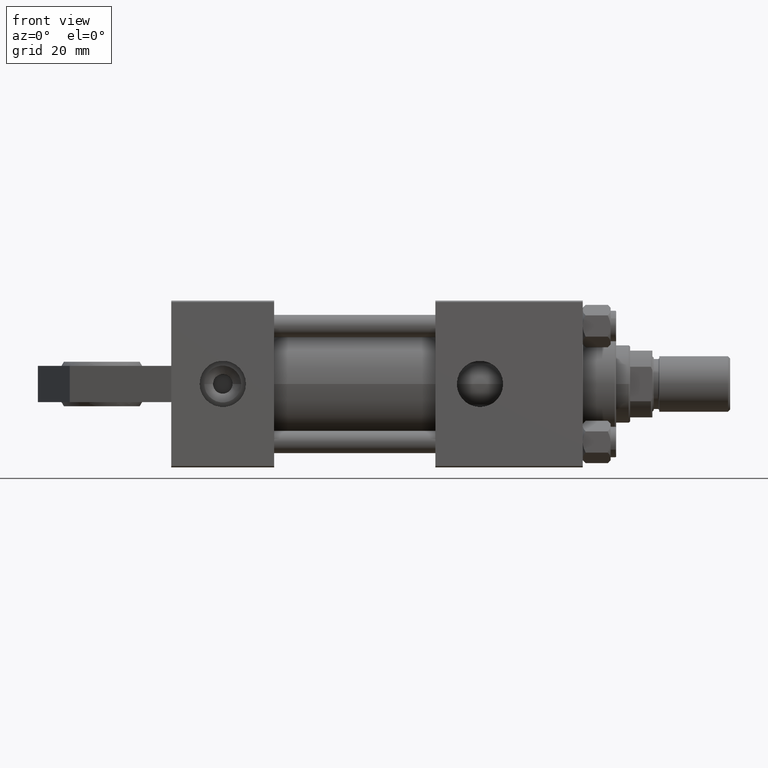
[diagram: clean part render]
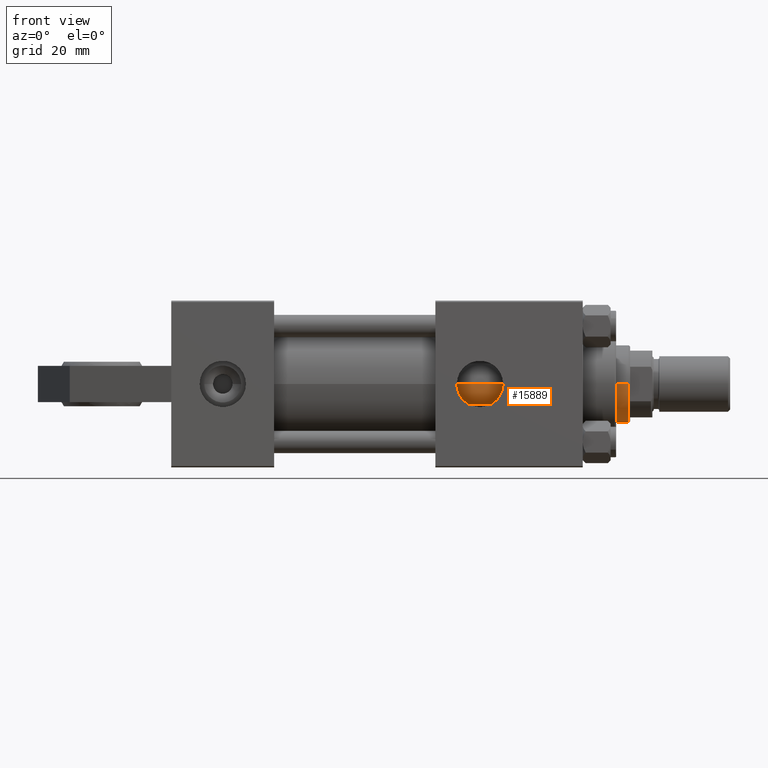
[diagram: same view with one face highlighted and labeled with its STEP entity id]
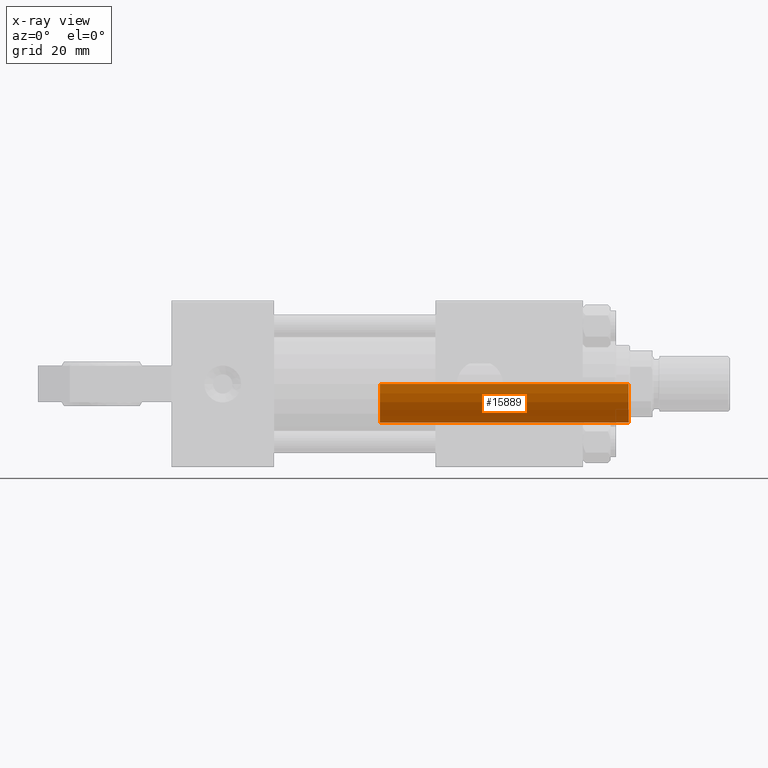
[diagram: x-ray of the same camera — body ghosted, the highlighted face saturated]
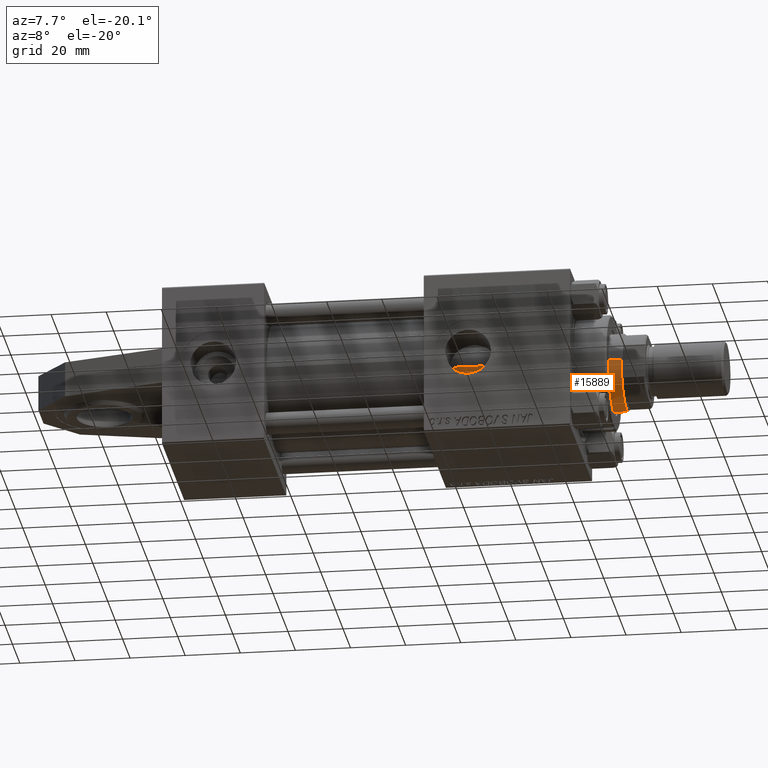
[diagram: same view with one face highlighted and labeled with its STEP entity id]
A machine part, front view. The second image highlights one B-rep face of the part: STEP entity #15889.
The next image is the same camera in x-ray: the body ghosted, the highlighted face saturated — about 0% of this face is hidden behind the body in this view.
A second angle (auxiliary view) of the same face is appended — the face is thin or edge-on in the first view.
In plain terms, the highlighted cylindrical surface (partial cylindrical patch) has radius 14 mm, axis along (-1, 0, 0).
Its self-contained STEP definition (entity closure, byte-faithful):
#143 = ORIENTED_EDGE ( 'NONE', *, *, #45171, .T. ) ;
#1662 = VERTEX_POINT ( 'NONE', #5268 ) ;
#1888 = EDGE_CURVE ( 'NONE', #46889, #6279, #31379, .T. ) ;
#3843 = CYLINDRICAL_SURFACE ( 'NONE', #21442, 14.00000000000000178 ) ;
#4147 = VERTEX_POINT ( 'NONE', #41041 ) ;
#5268 = CARTESIAN_POINT ( 'NONE',  ( 14.00000000000000178, 1.714505518806294441E-15, 127.5000000000000853 ) ) ;
#6184 = DIRECTION ( 'NONE',  ( -0.000000000000000000, -0.000000000000000000, -1.000000000000000000 ) ) ;
#6279 = VERTEX_POINT ( 'NONE', #8643 ) ;
#8643 = CARTESIAN_POINT ( 'NONE',  ( -14.00000000000000178, 0.000000000000000000, 38.00000000000000000 ) ) ;
#9202 = EDGE_CURVE ( 'NONE', #4147, #6279, #25185, .T. ) ;
#10940 = LINE ( 'NONE', #30720, #39838 ) ;
#11293 = DIRECTION ( 'NONE',  ( -0.000000000000000000, -0.000000000000000000, -1.000000000000000000 ) ) ;
#14481 = CIRCLE ( 'NONE', #47240, 14.00000000000000178 ) ;
#15889 = ADVANCED_FACE ( 'NONE', ( #35166 ), #3843, .T. ) ;
#17591 = CARTESIAN_POINT ( 'NONE',  ( 0.000000000000000000, 0.000000000000000000, 127.5000000000000853 ) ) ;
#20912 = DIRECTION ( 'NONE',  ( 1.000000000000000000, 0.000000000000000000, 0.000000000000000000 ) ) ;
#21442 = AXIS2_PLACEMENT_3D ( 'NONE', #22849, #11293, #46975 ) ;
#21691 = DIRECTION ( 'NONE',  ( 0.000000000000000000, 0.000000000000000000, -1.000000000000000000 ) ) ;
#22849 = CARTESIAN_POINT ( 'NONE',  ( 0.000000000000000000, 0.000000000000000000, 128.0000000000000000 ) ) ;
#22955 = DIRECTION ( 'NONE',  ( 1.000000000000000000, 0.000000000000000000, 0.000000000000000000 ) ) ;
#25185 = LINE ( 'NONE', #49084, #38566 ) ;
#26910 = ORIENTED_EDGE ( 'NONE', *, *, #9202, .F. ) ;
#30430 = ORIENTED_EDGE ( 'NONE', *, *, #1888, .T. ) ;
#30720 = CARTESIAN_POINT ( 'NONE',  ( 14.00000000000000178, 1.714505518806294441E-15, 128.0000000000000000 ) ) ;
#31050 = EDGE_CURVE ( 'NONE', #4147, #1662, #14481, .T. ) ;
#31379 = CIRCLE ( 'NONE', #37959, 14.00000000000000178 ) ;
#31421 = DIRECTION ( 'NONE',  ( 0.000000000000000000, 0.000000000000000000, 1.000000000000000000 ) ) ;
#35024 = CARTESIAN_POINT ( 'NONE',  ( 0.000000000000000000, 0.000000000000000000, 38.00000000000000000 ) ) ;
#35166 = FACE_OUTER_BOUND ( 'NONE', #43365, .T. ) ;
#37959 = AXIS2_PLACEMENT_3D ( 'NONE', #35024, #31421, #22955 ) ;
#38428 = DIRECTION ( 'NONE',  ( -0.000000000000000000, -0.000000000000000000, -1.000000000000000000 ) ) ;
#38566 = VECTOR ( 'NONE', #6184, 1000.000000000000000 ) ;
#39838 = VECTOR ( 'NONE', #38428, 1000.000000000000000 ) ;
#41041 = CARTESIAN_POINT ( 'NONE',  ( -14.00000000000000178, 0.000000000000000000, 127.5000000000000853 ) ) ;
#42139 = CARTESIAN_POINT ( 'NONE',  ( 14.00000000000000178, 1.714505518806294441E-15, 38.00000000000000000 ) ) ;
#43365 = EDGE_LOOP ( 'NONE', ( #45302, #143, #30430, #26910 ) ) ;
#45171 = EDGE_CURVE ( 'NONE', #1662, #46889, #10940, .T. ) ;
#45302 = ORIENTED_EDGE ( 'NONE', *, *, #31050, .T. ) ;
#46889 = VERTEX_POINT ( 'NONE', #42139 ) ;
#46975 = DIRECTION ( 'NONE',  ( -1.000000000000000000, 0.000000000000000000, 0.000000000000000000 ) ) ;
#47240 = AXIS2_PLACEMENT_3D ( 'NONE', #17591, #21691, #20912 ) ;
#49084 = CARTESIAN_POINT ( 'NONE',  ( -14.00000000000000178, 0.000000000000000000, 128.0000000000000000 ) ) ;